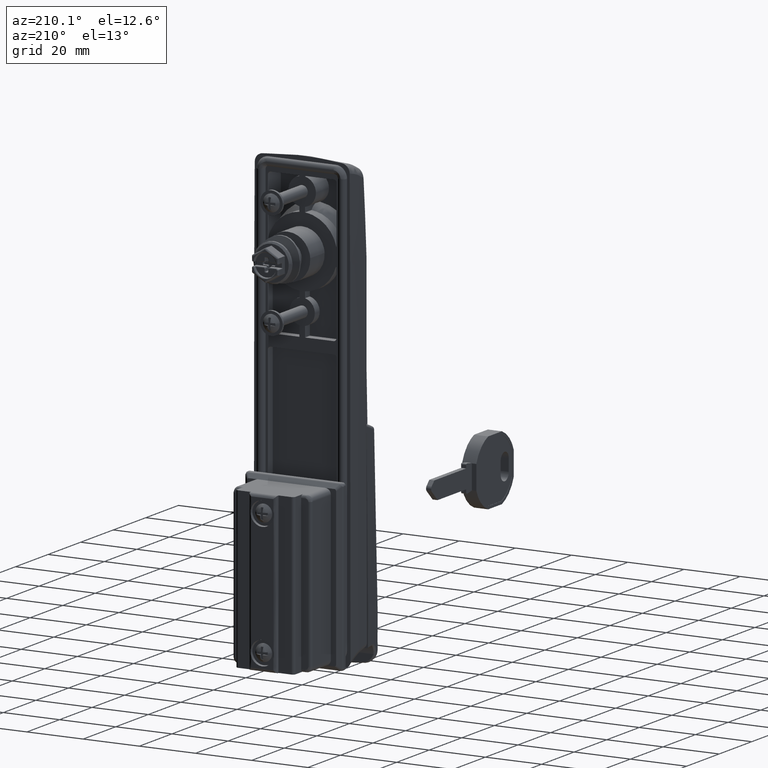
[diagram: clean part render]
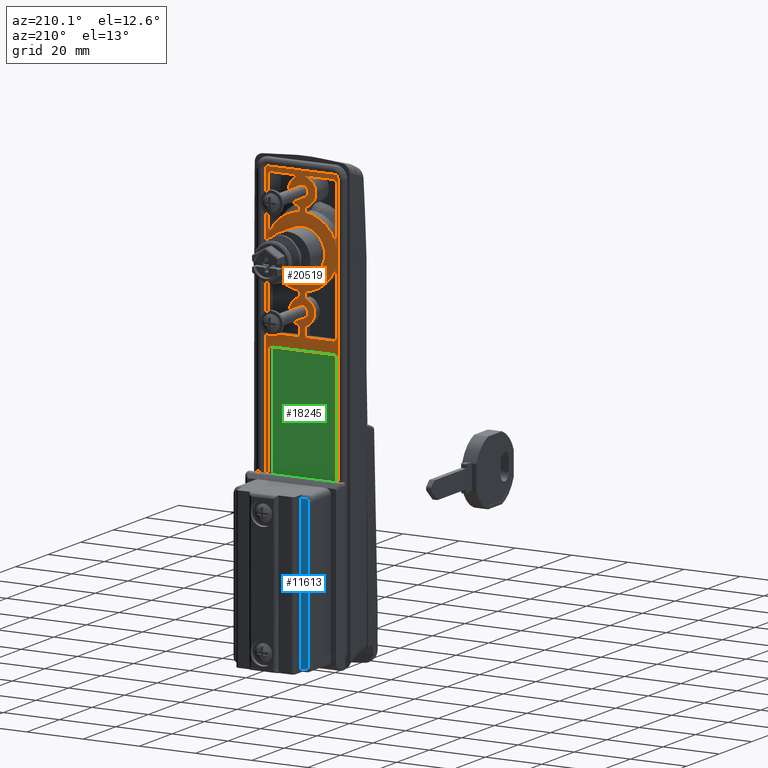
[diagram: same view with three faces highlighted in distinct colors, each labeled with its STEP entity id]
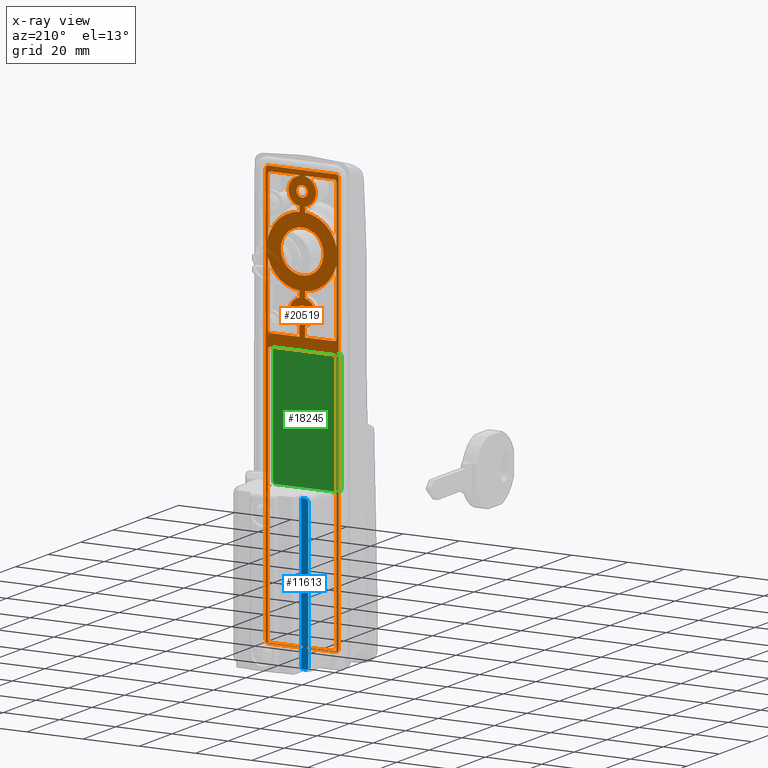
[diagram: x-ray of the same camera — body ghosted, the three highlighted faces saturated]
A machine part, auxiliary view with three faces highlighted in distinct colors.
The next image is the same camera in x-ray (body ghosted, the three faces saturated) — at least one of them is partly hidden behind the body in this view.
Their STEP definitions:

[orange] entity #20519 — the highlighted face is a freeform B-spline surface patch.
#11931=CARTESIAN_POINT('',(-5.551115E-017,5.326909944000573,5.420703870209787));
#11932=VERTEX_POINT('',#11931);
#11938=CARTESIAN_POINT('',(0.0,-7.600000000000000,0.0));
#11939=VERTEX_POINT('',#11938);
#11940=CARTESIAN_POINT('',(-5.551115E-017,5.326909944000573,5.420703870209787));
#11941=CARTESIAN_POINT('',(0.0,3.109241710582899,7.600000000000001));
#11942=CARTESIAN_POINT('',(0.0,0.0,7.600000000000000));
#11943=CARTESIAN_POINT('',(0.0,-7.600000000000000,7.600000000000000));
#11944=CARTESIAN_POINT('',(0.0,-7.600000000000000,0.0));
#11952=(BOUNDED_CURVE()B_SPLINE_CURVE(2,(#11940,#11941,#11942,#11943,#11944),.UNSPECIFIED.,.F.,.U.)B_SPLINE_CURVE_WITH_KNOTS((3,2,3),(0.126316770525920,0.250000000000000,0.500000000000000),.UNSPECIFIED.)CURVE()GEOMETRIC_REPRESENTATION_ITEM()RATIONAL_B_SPLINE_CURVE((0.853569641570771,0.855096083224375,1.0,0.707106781186547,1.0))REPRESENTATION_ITEM(''));
#11953=EDGE_CURVE('',#11932,#11939,#11952,.T.);
#11955=CARTESIAN_POINT('',(-5.551115E-017,-5.326909944000574,-5.420703870209785));
#11956=VERTEX_POINT('',#11955);
#11957=CARTESIAN_POINT('',(0.0,-7.600000000000000,0.0));
#11958=CARTESIAN_POINT('',(0.0,-7.600000000000000,-3.186944876390533));
#11959=CARTESIAN_POINT('',(0.0,-5.326909944000596,-5.420703870209807));
#11967=(BOUNDED_CURVE()B_SPLINE_CURVE(2,(#11957,#11958,#11959),.UNSPECIFIED.,.F.,.U.)B_SPLINE_CURVE_WITH_KNOTS((3,3),(0.500000000000000,0.626316770525920),.UNSPECIFIED.)CURVE()GEOMETRIC_REPRESENTATION_ITEM()RATIONAL_B_SPLINE_CURVE((1.0,0.852010697962173,0.853569641570771))REPRESENTATION_ITEM(''));
#11968=EDGE_CURVE('',#11939,#11956,#11967,.T.);
#12044=CARTESIAN_POINT('',(0.0,7.600000000000000,0.0));
#12045=VERTEX_POINT('',#12044);
#12046=CARTESIAN_POINT('',(-5.551115E-017,-5.326909944000574,-5.420703870209785));
#12047=CARTESIAN_POINT('',(0.0,-3.109241710582900,-7.600000000000001));
#12048=CARTESIAN_POINT('',(0.0,0.0,-7.600000000000000));
#12049=CARTESIAN_POINT('',(0.0,7.600000000000000,-7.600000000000000));
#12050=CARTESIAN_POINT('',(0.0,7.600000000000000,0.0));
#12058=(BOUNDED_CURVE()B_SPLINE_CURVE(2,(#12046,#12047,#12048,#12049,#12050),.UNSPECIFIED.,.F.,.U.)B_SPLINE_CURVE_WITH_KNOTS((3,2,3),(0.626316770525920,0.750000000000000,1.0),.UNSPECIFIED.)CURVE()GEOMETRIC_REPRESENTATION_ITEM()RATIONAL_B_SPLINE_CURVE((0.853569641570771,0.855096083224375,1.0,0.707106781186547,1.0))REPRESENTATION_ITEM(''));
#12059=EDGE_CURVE('',#11956,#12045,#12058,.T.);
#12061=CARTESIAN_POINT('',(0.0,7.600000000000000,0.0));
#12062=CARTESIAN_POINT('',(0.0,7.599999999999999,3.186944876390533));
#12063=CARTESIAN_POINT('',(0.0,5.326909944000595,5.420703870209807));
#12071=(BOUNDED_CURVE()B_SPLINE_CURVE(2,(#12061,#12062,#12063),.UNSPECIFIED.,.F.,.U.)B_SPLINE_CURVE_WITH_KNOTS((3,3),(0.0,0.126316770525920),.UNSPECIFIED.)CURVE()GEOMETRIC_REPRESENTATION_ITEM()RATIONAL_B_SPLINE_CURVE((1.0,0.852010697962173,0.853569641570771))REPRESENTATION_ITEM(''));
#12072=EDGE_CURVE('',#12045,#11932,#12071,.T.);
#12494=CARTESIAN_POINT('',(0.000000084971916,-1.993834667375058,19.156919095066069));
#12495=VERTEX_POINT('',#12494);
#12501=CARTESIAN_POINT('',(0.000000083740410,0.0,17.000000902451600));
#12502=VERTEX_POINT('',#12501);
#12503=CARTESIAN_POINT('',(0.000000084971917,-1.993834667375059,19.156919095066062));
#12504=CARTESIAN_POINT('',(0.000000084927189,-2.000000000000000,19.078581117049016));
#12505=CARTESIAN_POINT('',(0.000000084882323,-2.0,19.000000902451600));
#12506=CARTESIAN_POINT('',(0.000000083740410,-2.000000000000000,17.000000902451593));
#12507=CARTESIAN_POINT('',(0.000000083740410,0.0,17.000000902451600));
#12515=(BOUNDED_CURVE()B_SPLINE_CURVE(2,(#12503,#12504,#12505,#12506,#12507),.UNSPECIFIED.,.F.,.U.)B_SPLINE_CURVE_WITH_KNOTS((3,2,3),(0.736331300533139,0.750000000000000,1.0),.UNSPECIFIED.)CURVE()GEOMETRIC_REPRESENTATION_ITEM()RATIONAL_B_SPLINE_CURVE((0.969723355963899,0.983986122464629,1.0,0.707106781186548,1.0))REPRESENTATION_ITEM(''));
#12516=EDGE_CURVE('',#12495,#12502,#12515,.T.);
#12518=CARTESIAN_POINT('',(0.000000084792730,1.993834667375058,18.843082709837141));
#12519=VERTEX_POINT('',#12518);
#12520=CARTESIAN_POINT('',(0.000000083740410,0.0,17.000000902451600));
#12521=CARTESIAN_POINT('',(0.000000083740410,1.848780982238623,17.000000902451593));
#12522=CARTESIAN_POINT('',(0.000000084792730,1.993834667375059,18.843082709837148));
#12530=(BOUNDED_CURVE()B_SPLINE_CURVE(2,(#12520,#12521,#12522),.UNSPECIFIED.,.F.,.U.)B_SPLINE_CURVE_WITH_KNOTS((3,3),(0.0,0.236331300533139),.UNSPECIFIED.)CURVE()GEOMETRIC_REPRESENTATION_ITEM()RATIONAL_B_SPLINE_CURVE((1.0,0.723120658721918,0.969723355963900))REPRESENTATION_ITEM(''));
#12531=EDGE_CURVE('',#12502,#12519,#12530,.T.);
#12577=CARTESIAN_POINT('',(0.000000086024237,0.0,21.000000902451600));
#12578=VERTEX_POINT('',#12577);
#12579=CARTESIAN_POINT('',(0.000000084792730,1.993834667375058,18.843082709837137));
#12580=CARTESIAN_POINT('',(0.000000084837457,2.000000000000000,18.921420687854187));
#12581=CARTESIAN_POINT('',(0.000000084882323,2.0,19.000000902451600));
#12582=CARTESIAN_POINT('',(0.000000086024237,2.000000000000000,21.000000902451607));
#12583=CARTESIAN_POINT('',(0.000000086024237,0.0,21.000000902451600));
#12591=(BOUNDED_CURVE()B_SPLINE_CURVE(2,(#12579,#12580,#12581,#12582,#12583),.UNSPECIFIED.,.F.,.U.)B_SPLINE_CURVE_WITH_KNOTS((3,2,3),(0.236331300533139,0.250000000000000,0.500000000000000),.UNSPECIFIED.)CURVE()GEOMETRIC_REPRESENTATION_ITEM()RATIONAL_B_SPLINE_CURVE((0.969723355963900,0.983986122464629,1.0,0.707106781186548,1.0))REPRESENTATION_ITEM(''));
#12592=EDGE_CURVE('',#12519,#12578,#12591,.T.);
#12594=CARTESIAN_POINT('',(0.000000086024237,0.0,21.000000902451600));
#12595=CARTESIAN_POINT('',(0.000000086024237,-1.848780982238621,21.000000902451610));
#12596=CARTESIAN_POINT('',(0.000000084971917,-1.993834667375058,19.156919095066069));
#12604=(BOUNDED_CURVE()B_SPLINE_CURVE(2,(#12594,#12595,#12596),.UNSPECIFIED.,.F.,.U.)B_SPLINE_CURVE_WITH_KNOTS((3,3),(0.500000000000000,0.736331300533139),.UNSPECIFIED.)CURVE()GEOMETRIC_REPRESENTATION_ITEM()RATIONAL_B_SPLINE_CURVE((1.0,0.723120658721918,0.969723355963899))REPRESENTATION_ITEM(''));
#12605=EDGE_CURVE('',#12578,#12495,#12604,.T.);
#12676=CARTESIAN_POINT('',(0.000000063275495,-1.993834667375058,-18.843080904933991));
#12677=VERTEX_POINT('',#12676);
#12683=CARTESIAN_POINT('',(0.000000062043987,0.0,-20.999999097548450));
#12684=VERTEX_POINT('',#12683);
#12685=CARTESIAN_POINT('',(0.000000063275494,-1.993834667375059,-18.843080904933991));
#12686=CARTESIAN_POINT('',(0.000000063230767,-2.0,-18.921418882951034));
#12687=CARTESIAN_POINT('',(0.000000063185901,-2.0,-18.999999097548450));
#12688=CARTESIAN_POINT('',(0.000000062043987,-2.000000000000000,-20.999999097548450));
#12689=CARTESIAN_POINT('',(0.000000062043987,0.0,-20.999999097548450));
#12697=(BOUNDED_CURVE()B_SPLINE_CURVE(2,(#12685,#12686,#12687,#12688,#12689),.UNSPECIFIED.,.F.,.U.)B_SPLINE_CURVE_WITH_KNOTS((3,2,3),(0.736331300533139,0.750000000000000,1.0),.UNSPECIFIED.)CURVE()GEOMETRIC_REPRESENTATION_ITEM()RATIONAL_B_SPLINE_CURVE((0.969723355963899,0.983986122464629,1.0,0.707106781186548,1.0))REPRESENTATION_ITEM(''));
#12698=EDGE_CURVE('',#12677,#12684,#12697,.T.);
#12700=CARTESIAN_POINT('',(0.000000063096307,1.993834667375058,-19.156917290162919));
#12701=VERTEX_POINT('',#12700);
#12702=CARTESIAN_POINT('',(0.000000062043987,0.0,-20.999999097548450));
#12703=CARTESIAN_POINT('',(0.000000062043987,1.848780982238621,-20.999999097548454));
#12704=CARTESIAN_POINT('',(0.000000063096307,1.993834667375058,-19.156917290162909));
#12712=(BOUNDED_CURVE()B_SPLINE_CURVE(2,(#12702,#12703,#12704),.UNSPECIFIED.,.F.,.U.)B_SPLINE_CURVE_WITH_KNOTS((3,3),(0.0,0.236331300533139),.UNSPECIFIED.)CURVE()GEOMETRIC_REPRESENTATION_ITEM()RATIONAL_B_SPLINE_CURVE((1.0,0.723120658721918,0.969723355963899))REPRESENTATION_ITEM(''));
#12713=EDGE_CURVE('',#12684,#12701,#12712,.T.);
#12759=CARTESIAN_POINT('',(0.000000064327815,0.0,-16.999999097548450));
#12760=VERTEX_POINT('',#12759);
#12761=CARTESIAN_POINT('',(0.000000063096307,1.993834667375058,-19.156917290162909));
#12762=CARTESIAN_POINT('',(0.000000063141035,2.000000000000000,-19.078579312145862));
#12763=CARTESIAN_POINT('',(0.000000063185901,2.0,-18.999999097548450));
#12764=CARTESIAN_POINT('',(0.000000064327815,2.000000000000000,-16.999999097548454));
#12765=CARTESIAN_POINT('',(0.000000064327815,0.0,-16.999999097548450));
#12773=(BOUNDED_CURVE()B_SPLINE_CURVE(2,(#12761,#12762,#12763,#12764,#12765),.UNSPECIFIED.,.F.,.U.)B_SPLINE_CURVE_WITH_KNOTS((3,2,3),(0.236331300533139,0.250000000000000,0.500000000000000),.UNSPECIFIED.)CURVE()GEOMETRIC_REPRESENTATION_ITEM()RATIONAL_B_SPLINE_CURVE((0.969723355963899,0.983986122464629,1.0,0.707106781186548,1.0))REPRESENTATION_ITEM(''));
#12774=EDGE_CURVE('',#12701,#12760,#12773,.T.);
#12776=CARTESIAN_POINT('',(0.000000064327815,0.0,-16.999999097548450));
#12777=CARTESIAN_POINT('',(0.000000064327815,-1.848780982238621,-16.999999097548457));
#12778=CARTESIAN_POINT('',(0.000000063275494,-1.993834667375058,-18.843080904933988));
#12786=(BOUNDED_CURVE()B_SPLINE_CURVE(2,(#12776,#12777,#12778),.UNSPECIFIED.,.F.,.U.)B_SPLINE_CURVE_WITH_KNOTS((3,3),(0.500000000000000,0.736331300533139),.UNSPECIFIED.)CURVE()GEOMETRIC_REPRESENTATION_ITEM()RATIONAL_B_SPLINE_CURVE((1.0,0.723120658721918,0.969723355963899))REPRESENTATION_ITEM(''));
#12787=EDGE_CURVE('',#12760,#12677,#12786,.T.);
#17071=CARTESIAN_POINT('',(-1.110223E-013,1.000120185797414,24.000003627503851));
#17072=VERTEX_POINT('',#17071);
#17073=CARTESIAN_POINT('',(-1.110223E-013,1.000120185797414,23.800034947185399));
#17074=VERTEX_POINT('',#17073);
#17075=CARTESIAN_POINT('',(-1.110223E-013,1.000120185797414,24.000003627503851));
#17076=CARTESIAN_POINT('',(-1.110223E-013,1.000120185797414,23.800034947185399));
#17077=QUASI_UNIFORM_CURVE('',1,(#17075,#17076),.UNSPECIFIED.,.F.,.U.);
#17078=EDGE_CURVE('',#17072,#17074,#17077,.T.);
#17107=CARTESIAN_POINT('',(-1.110223E-013,11.200120670271421,24.000003877504199));
#17108=VERTEX_POINT('',#17107);
#17109=CARTESIAN_POINT('',(-1.110223E-013,11.200120670271421,24.000003877504199));
#17110=CARTESIAN_POINT('',(-1.110223E-013,1.000120185797414,24.000003627503851));
#17111=QUASI_UNIFORM_CURVE('',1,(#17109,#17110),.UNSPECIFIED.,.F.,.U.);
#17112=EDGE_CURVE('',#17108,#17072,#17111,.T.);
#17144=CARTESIAN_POINT('',(-1.110223E-013,12.200120717768860,23.014896032761349));
#17145=VERTEX_POINT('',#17144);
#17146=CARTESIAN_POINT('',(-1.110223E-013,12.200120717768860,23.014896032761349));
#17147=CARTESIAN_POINT('',(-1.110223E-013,12.184664400456883,23.999318669849789));
#17148=CARTESIAN_POINT('',(-1.110223E-013,11.200120670272190,24.000003878604229));
#17156=(BOUNDED_CURVE()B_SPLINE_CURVE(2,(#17146,#17147,#17148),.UNSPECIFIED.,.F.,.U.)CURVE()GEOMETRIC_REPRESENTATION_ITEM()QUASI_UNIFORM_CURVE()RATIONAL_B_SPLINE_CURVE((1.0,0.712879666211485,1.0))REPRESENTATION_ITEM(''));
#17157=EDGE_CURVE('',#17145,#17108,#17156,.T.);
#17188=CARTESIAN_POINT('',(0.000000087737037,-1.000120185797414,24.000003627503851));
#17189=VERTEX_POINT('',#17188);
#17190=CARTESIAN_POINT('',(-1.110223E-013,-11.200120670272099,24.000003878604002));
#17191=VERTEX_POINT('',#17190);
#17192=CARTESIAN_POINT('',(0.000000087737037,-1.000120185797414,24.000003627503851));
#17193=CARTESIAN_POINT('',(-1.110223E-013,-11.200120670272099,24.000003878604002));
#17194=QUASI_UNIFORM_CURVE('',1,(#17192,#17193),.UNSPECIFIED.,.F.,.U.);
#17195=EDGE_CURVE('',#17189,#17191,#17194,.T.);
#17224=CARTESIAN_POINT('',(-1.110223E-013,-1.000123354566898,23.800034947186351));
#17225=VERTEX_POINT('',#17224);
#17226=CARTESIAN_POINT('',(-1.110223E-013,-1.000123354566898,23.800034947186351));
#17227=CARTESIAN_POINT('',(0.000000087737037,-1.000120185797414,24.000003627503851));
#17228=QUASI_UNIFORM_CURVE('',1,(#17226,#17227),.UNSPECIFIED.,.F.,.U.);
#17229=EDGE_CURVE('',#17225,#17189,#17228,.T.);
#17261=CARTESIAN_POINT('',(-1.110223E-013,-12.200120717768860,23.014896032757449));
#17262=VERTEX_POINT('',#17261);
#17263=CARTESIAN_POINT('',(-1.110223E-013,-11.200120670272099,24.000003878604030));
#17264=CARTESIAN_POINT('',(-1.110223E-013,-12.184664400460424,23.999318669849590));
#17265=CARTESIAN_POINT('',(-1.110223E-013,-12.200120717768870,23.014896032757449));
#17273=(BOUNDED_CURVE()B_SPLINE_CURVE(2,(#17263,#17264,#17265),.UNSPECIFIED.,.F.,.U.)CURVE()GEOMETRIC_REPRESENTATION_ITEM()QUASI_UNIFORM_CURVE()RATIONAL_B_SPLINE_CURVE((1.0,0.712879666210193,1.0))REPRESENTATION_ITEM(''));
#17274=EDGE_CURVE('',#17191,#17262,#17273,.T.);
#17397=CARTESIAN_POINT('',(0.0,-12.200120958050441,-25.999998497368502));
#17398=VERTEX_POINT('',#17397);
#17399=CARTESIAN_POINT('',(0.000000072035722,-12.200120717768860,-3.499997428675895));
#17400=VERTEX_POINT('',#17399);
#17401=CARTESIAN_POINT('',(0.0,-12.200120958050441,-25.999998497368502));
#17402=CARTESIAN_POINT('',(0.000000072035722,-12.200120717768860,-3.499997428675895));
#17403=QUASI_UNIFORM_CURVE('',1,(#17401,#17402),.UNSPECIFIED.,.F.,.U.);
#17404=EDGE_CURVE('',#17398,#17400,#17403,.T.);
#17425=CARTESIAN_POINT('',(0.0,-12.000212616159621,-3.499997428675895));
#17426=VERTEX_POINT('',#17425);
#17427=CARTESIAN_POINT('',(0.000000072035722,-12.200120717768860,-3.499997428675895));
#17428=CARTESIAN_POINT('',(0.0,-12.000212616159621,-3.499997428675895));
#17429=QUASI_UNIFORM_CURVE('',1,(#17427,#17428),.UNSPECIFIED.,.F.,.U.);
#17430=EDGE_CURVE('',#17400,#17426,#17429,.T.);
#17456=CARTESIAN_POINT('',(0.0,-1.000120196623366,-12.460003505695200));
#17457=VERTEX_POINT('',#17456);
#17458=CARTESIAN_POINT('',(0.0,-12.000212616159621,-3.499997428675895));
#17459=CARTESIAN_POINT('',(0.0,-9.587915476922591,-11.770793113107334));
#17460=CARTESIAN_POINT('',(0.0,-1.000120196623366,-12.460003505695189));
#17468=(BOUNDED_CURVE()B_SPLINE_CURVE(2,(#17458,#17459,#17460),.UNSPECIFIED.,.F.,.U.)CURVE()GEOMETRIC_REPRESENTATION_ITEM()QUASI_UNIFORM_CURVE()RATIONAL_B_SPLINE_CURVE((1.0,0.823376659458550,1.0))REPRESENTATION_ITEM(''));
#17469=EDGE_CURVE('',#17426,#17457,#17468,.T.);
#17486=CARTESIAN_POINT('',(0.0,-1.000120185797300,-14.612360766254200));
#17487=VERTEX_POINT('',#17486);
#17488=CARTESIAN_POINT('',(0.0,-1.000120196623366,-12.460003505695200));
#17489=CARTESIAN_POINT('',(0.0,-1.000120185797300,-14.612360766254200));
#17490=QUASI_UNIFORM_CURVE('',1,(#17488,#17489),.UNSPECIFIED.,.F.,.U.);
#17491=EDGE_CURVE('',#17457,#17487,#17490,.T.);
#17521=CARTESIAN_POINT('',(0.0,-1.000120185797408,-23.387480229701598));
#17522=VERTEX_POINT('',#17521);
#17523=CARTESIAN_POINT('',(0.0,-1.000120185797300,-14.612360766254200));
#17524=CARTESIAN_POINT('',(0.0,-1.585098028271931,-14.745000428749581));
#17525=CARTESIAN_POINT('',(0.0,-2.523685752809362,-15.169848363969541));
#17526=CARTESIAN_POINT('',(0.0,-3.446785887762418,-16.048566690599650));
#17527=CARTESIAN_POINT('',(0.0,-3.957124846726660,-16.812391834861341));
#17528=CARTESIAN_POINT('',(0.0,-4.358561295001432,-17.708619404686878));
#17529=CARTESIAN_POINT('',(0.0,-4.534819109924787,-18.683447540593750));
#17530=CARTESIAN_POINT('',(0.0,-4.472589330498501,-19.663497108372582));
#17531=CARTESIAN_POINT('',(0.0,-4.269260710867047,-20.526799477293409));
#17532=CARTESIAN_POINT('',(0.0,-3.847431894676324,-21.418372715446921));
#17533=CARTESIAN_POINT('',(0.0,-3.084610736637999,-22.354529651479460));
#17534=CARTESIAN_POINT('',(0.0,-2.117667814258463,-23.035081034298770));
#17535=CARTESIAN_POINT('',(0.0,-1.338644211141292,-23.310373623834970));
#17536=CARTESIAN_POINT('',(0.0,-1.000120185797408,-23.387480229701598));
#17537=B_SPLINE_CURVE_WITH_KNOTS('',3,(#17523,#17524,#17525,#17526,#17527,#17528,#17529,#17530,#17531,#17532,#17533,#17534,#17535,#17536),.UNSPECIFIED.,.F.,.U.,(4,1,1,1,1,1,1,1,1,1,1,4),(0.000000285138805,1.799206702045868,3.030243605382664,3.787832187280108,4.545373885321881,5.965821425480653,6.723287031334457,7.480896313976809,8.617245572034557,9.658914659867804,11.079338285529049,12.120964346674461),.UNSPECIFIED.);
#17538=EDGE_CURVE('',#17487,#17522,#17537,.T.);
#17555=CARTESIAN_POINT('',(0.0,-1.000120185797300,-26.999998294865900));
#17556=VERTEX_POINT('',#17555);
#17557=CARTESIAN_POINT('',(0.0,-1.000120185797408,-23.387480229701598));
#17558=CARTESIAN_POINT('',(0.0,-1.000120185797300,-26.999998294865900));
#17559=QUASI_UNIFORM_CURVE('',1,(#17557,#17558),.UNSPECIFIED.,.F.,.U.);
#17560=EDGE_CURVE('',#17522,#17556,#17559,.T.);
#17577=CARTESIAN_POINT('',(0.0,-11.200120670271300,-26.999998544866049));
#17578=VERTEX_POINT('',#17577);
#17579=CARTESIAN_POINT('',(0.0,-1.000120185797300,-26.999998294865900));
#17580=CARTESIAN_POINT('',(0.0,-11.200120670271300,-26.999998544866049));
#17581=QUASI_UNIFORM_CURVE('',1,(#17579,#17580),.UNSPECIFIED.,.F.,.U.);
#17582=EDGE_CURVE('',#17556,#17578,#17581,.T.);
#17608=CARTESIAN_POINT('',(0.0,-12.200120958050420,-25.999998497368502));
#17609=CARTESIAN_POINT('',(0.0,-12.200120377959484,-26.999998205056546));
#17610=CARTESIAN_POINT('',(0.0,-11.200120670271440,-26.999998785147540));
#17618=(BOUNDED_CURVE()B_SPLINE_CURVE(2,(#17608,#17609,#17610),.UNSPECIFIED.,.F.,.U.)CURVE()GEOMETRIC_REPRESENTATION_ITEM()QUASI_UNIFORM_CURVE()RATIONAL_B_SPLINE_CURVE((1.0,0.707107191372799,1.0))REPRESENTATION_ITEM(''));
#17619=EDGE_CURVE('',#17398,#17578,#17618,.T.);
#17724=CARTESIAN_POINT('',(0.000000059189193,12.199880441169061,-25.999998497368850));
#17725=VERTEX_POINT('',#17724);
#17726=CARTESIAN_POINT('',(0.0,12.199880441169061,-3.499997678676040));
#17727=VERTEX_POINT('',#17726);
#17728=CARTESIAN_POINT('',(0.000000059189193,12.199880441169061,-25.999998497368850));
#17729=CARTESIAN_POINT('',(0.0,12.199880441169061,-3.499997678676040));
#17730=QUASI_UNIFORM_CURVE('',1,(#17728,#17729),.UNSPECIFIED.,.F.,.U.);
#17731=EDGE_CURVE('',#17725,#17727,#17730,.T.);
#17761=CARTESIAN_POINT('',(0.0,11.199880393671499,-26.999998544866049));
#17762=VERTEX_POINT('',#17761);
#17763=CARTESIAN_POINT('',(0.0,11.199880393671499,-26.999998544866049));
#17764=CARTESIAN_POINT('',(0.0,12.199880101359193,-26.999998205056553));
#17765=CARTESIAN_POINT('',(0.0,12.199880681450621,-25.999998497368988));
#17773=(BOUNDED_CURVE()B_SPLINE_CURVE(2,(#17763,#17764,#17765),.UNSPECIFIED.,.F.,.U.)CURVE()GEOMETRIC_REPRESENTATION_ITEM()QUASI_UNIFORM_CURVE()RATIONAL_B_SPLINE_CURVE((1.0,0.707107191372979,1.0))REPRESENTATION_ITEM(''));
#17774=EDGE_CURVE('',#17762,#17725,#17773,.T.);
#17791=CARTESIAN_POINT('',(0.0,0.999879909197489,-26.999998544866049));
#17792=VERTEX_POINT('',#17791);
#17793=CARTESIAN_POINT('',(0.0,0.999879909197489,-26.999998544866049));
#17794=CARTESIAN_POINT('',(0.0,11.199880393671499,-26.999998544866049));
#17795=QUASI_UNIFORM_CURVE('',1,(#17793,#17794),.UNSPECIFIED.,.F.,.U.);
#17796=EDGE_CURVE('',#17792,#17762,#17795,.T.);
#17813=CARTESIAN_POINT('',(0.0,0.999881389108586,-23.387480229702049));
#17814=VERTEX_POINT('',#17813);
#17815=CARTESIAN_POINT('',(0.0,0.999881389108586,-23.387480229702049));
#17816=CARTESIAN_POINT('',(0.0,0.999879909197489,-26.999998544866049));
#17817=QUASI_UNIFORM_CURVE('',1,(#17815,#17816),.UNSPECIFIED.,.F.,.U.);
#17818=EDGE_CURVE('',#17814,#17792,#17817,.T.);
#17848=CARTESIAN_POINT('',(0.0,0.999879909197489,-14.612360766444739));
#17849=VERTEX_POINT('',#17848);
#17850=CARTESIAN_POINT('',(0.0,0.999881389108586,-23.387480229702049));
#17851=CARTESIAN_POINT('',(0.0,1.584886189049107,-23.254882637277611));
#17852=CARTESIAN_POINT('',(0.0,2.523417112001130,-22.829968169634689));
#17853=CARTESIAN_POINT('',(0.0,3.492694415123265,-21.907335466341070));
#17854=CARTESIAN_POINT('',(0.0,4.124642578232119,-20.917430538352530));
#17855=CARTESIAN_POINT('',(0.0,4.451544857420538,-19.916559416342931));
#17856=CARTESIAN_POINT('',(0.0,4.528342861071998,-18.873058161504400));
#17857=CARTESIAN_POINT('',(0.0,4.396612515365672,-17.833981026622109));
#17858=CARTESIAN_POINT('',(0.0,3.936631635864858,-16.677666719477099));
#17859=CARTESIAN_POINT('',(0.0,3.169207488544404,-15.736350046710109));
#17860=CARTESIAN_POINT('',(0.0,2.173115371080729,-15.003565656959591));
#17861=CARTESIAN_POINT('',(0.0,1.461587137692445,-14.717301609117110));
#17862=CARTESIAN_POINT('',(0.0,0.999879909197489,-14.612360766444739));
#17863=B_SPLINE_CURVE_WITH_KNOTS('',3,(#17850,#17851,#17852,#17853,#17854,#17855,#17856,#17857,#17858,#17859,#17860,#17861,#17862),.UNSPECIFIED.,.F.,.U.,(4,1,1,1,1,1,1,1,1,1,4),(0.000000285134163,1.799206511172180,3.030243283950224,3.977202129001061,5.302972769491920,6.155144369792367,7.102059814908463,8.427834534427323,9.848292423474799,10.700599900097631,12.120963060960939),.UNSPECIFIED.);
#17864=EDGE_CURVE('',#17814,#17849,#17863,.T.);
#17881=CARTESIAN_POINT('',(0.0,0.999881600867987,-12.460003370724660));
#17882=VERTEX_POINT('',#17881);
#17883=CARTESIAN_POINT('',(0.0,0.999881600867987,-12.460003370724660));
#17884=CARTESIAN_POINT('',(0.0,0.999879909197489,-14.612360766444739));
#17885=QUASI_UNIFORM_CURVE('',1,(#17883,#17884),.UNSPECIFIED.,.F.,.U.);
#17886=EDGE_CURVE('',#17882,#17849,#17885,.T.);
#17912=CARTESIAN_POINT('',(0.0,11.999972339535841,-3.499997428676315));
#17913=VERTEX_POINT('',#17912);
#17914=CARTESIAN_POINT('',(0.0,0.999881600867983,-12.460003370724669));
#17915=CARTESIAN_POINT('',(0.0,9.587675548619140,-11.770791919311620));
#17916=CARTESIAN_POINT('',(0.0,11.999972339535850,-3.499997428676320));
#17924=(BOUNDED_CURVE()B_SPLINE_CURVE(2,(#17914,#17915,#17916),.UNSPECIFIED.,.F.,.U.)CURVE()GEOMETRIC_REPRESENTATION_ITEM()QUASI_UNIFORM_CURVE()RATIONAL_B_SPLINE_CURVE((1.0,0.823376697725791,1.0))REPRESENTATION_ITEM(''));
#17925=EDGE_CURVE('',#17882,#17913,#17924,.T.);
#17942=CARTESIAN_POINT('',(0.0,12.199880441169061,-3.499997678676040));
#17943=CARTESIAN_POINT('',(0.0,11.999972339535841,-3.499997428676315));
#17944=QUASI_UNIFORM_CURVE('',1,(#17942,#17943),.UNSPECIFIED.,.F.,.U.);
#17945=EDGE_CURVE('',#17727,#17913,#17944,.T.);
#18063=CARTESIAN_POINT('',(-2.220446E-013,12.199880441169061,-124.750005925306990));
#18064=VERTEX_POINT('',#18063);
#18065=CARTESIAN_POINT('',(-2.220446E-013,-12.200120717768860,-124.750005925306990));
#18066=VERTEX_POINT('',#18065);
#18067=CARTESIAN_POINT('',(-2.220446E-013,12.199880441169061,-124.750005925306990));
#18068=CARTESIAN_POINT('',(-2.220446E-013,-12.200120717768860,-124.750005925306990));
#18069=QUASI_UNIFORM_CURVE('',1,(#18067,#18068),.UNSPECIFIED.,.F.,.U.);
#18070=EDGE_CURVE('',#18064,#18066,#18069,.T.);
#18099=CARTESIAN_POINT('',(-2.220446E-013,12.199880441169061,-75.250003574183197));
#18100=VERTEX_POINT('',#18099);
#18101=CARTESIAN_POINT('',(-2.220446E-013,12.199880441169061,-75.250003574183197));
#18102=CARTESIAN_POINT('',(-2.220446E-013,12.199880441169061,-124.750005925306990));
#18103=QUASI_UNIFORM_CURVE('',1,(#18101,#18102),.UNSPECIFIED.,.F.,.U.);
#18104=EDGE_CURVE('',#18100,#18064,#18103,.T.);
#18127=CARTESIAN_POINT('',(-2.220446E-013,-12.200120717768860,-75.250003574183197));
#18128=VERTEX_POINT('',#18127);
#18129=CARTESIAN_POINT('',(-2.220446E-013,-12.200120717768860,-124.750005925306990));
#18130=CARTESIAN_POINT('',(-2.220446E-013,-12.200120717768860,-75.250003574183197));
#18131=QUASI_UNIFORM_CURVE('',1,(#18129,#18130),.UNSPECIFIED.,.F.,.U.);
#18132=EDGE_CURVE('',#18066,#18128,#18131,.T.);
#18260=CARTESIAN_POINT('',(0.000000055620619,12.199880441169061,-32.249998746730249));
#18261=VERTEX_POINT('',#18260);
#18262=CARTESIAN_POINT('',(0.000000144937840,11.199880441169061,-31.249998746730249));
#18263=VERTEX_POINT('',#18262);
#18264=CARTESIAN_POINT('',(0.000000055620619,12.199880441169061,-32.249998746730249));
#18265=CARTESIAN_POINT('',(0.000000144937840,12.199880441169059,-31.249998746730249));
#18266=CARTESIAN_POINT('',(0.000000144937840,11.199880441169061,-31.249998746730249));
#18274=(BOUNDED_CURVE()B_SPLINE_CURVE(2,(#18264,#18265,#18266),.UNSPECIFIED.,.F.,.U.)CURVE()GEOMETRIC_REPRESENTATION_ITEM()QUASI_UNIFORM_CURVE()RATIONAL_B_SPLINE_CURVE((1.0,0.707106781186548,1.0))REPRESENTATION_ITEM(''));
#18275=EDGE_CURVE('',#18261,#18263,#18274,.T.);
#18296=CARTESIAN_POINT('',(0.000000144937840,12.199880441169061,-74.250003574183197));
#18297=VERTEX_POINT('',#18296);
#18298=CARTESIAN_POINT('',(0.000000144937840,12.199880441169061,-74.250003574183197));
#18299=CARTESIAN_POINT('',(0.000000055620619,12.199880441169061,-32.249998746730249));
#18300=QUASI_UNIFORM_CURVE('',1,(#18298,#18299),.UNSPECIFIED.,.F.,.U.);
#18301=EDGE_CURVE('',#18297,#18261,#18300,.T.);
#18327=CARTESIAN_POINT('',(0.000000144937840,11.199880441169061,-75.250003574183197));
#18328=VERTEX_POINT('',#18327);
#18329=CARTESIAN_POINT('',(0.000000144937840,11.199880441169061,-75.250003574183197));
#18330=CARTESIAN_POINT('',(0.000000144937840,12.199880441169059,-75.250003574183197));
#18331=CARTESIAN_POINT('',(0.000000144937840,12.199880441169061,-74.250003574183197));
#18339=(BOUNDED_CURVE()B_SPLINE_CURVE(2,(#18329,#18330,#18331),.UNSPECIFIED.,.F.,.U.)CURVE()GEOMETRIC_REPRESENTATION_ITEM()QUASI_UNIFORM_CURVE()RATIONAL_B_SPLINE_CURVE((1.0,0.707106781186548,1.0))REPRESENTATION_ITEM(''));
#18340=EDGE_CURVE('',#18328,#18297,#18339,.T.);
#18357=CARTESIAN_POINT('',(-1.698908E-013,-11.200120717768860,-75.250003574183197));
#18358=VERTEX_POINT('',#18357);
#18364=CARTESIAN_POINT('',(-2.220446E-013,-12.200120717768860,-75.250003574183197));
#18365=CARTESIAN_POINT('',(-1.698908E-013,-11.200120717768860,-75.250003574183197));
#18366=QUASI_UNIFORM_CURVE('',1,(#18364,#18365),.UNSPECIFIED.,.F.,.U.);
#18367=EDGE_CURVE('',#18128,#18358,#18366,.T.);
#18376=CARTESIAN_POINT('',(0.000000144937840,11.199880441169061,-75.250003574183197));
#18377=CARTESIAN_POINT('',(-2.220446E-013,12.199880441169061,-75.250003574183197));
#18378=QUASI_UNIFORM_CURVE('',1,(#18376,#18377),.UNSPECIFIED.,.F.,.U.);
#18379=EDGE_CURVE('',#18328,#18100,#18378,.T.);
#18400=CARTESIAN_POINT('',(0.000000144937840,-12.200120717768860,-74.250003574183197));
#18401=VERTEX_POINT('',#18400);
#18402=CARTESIAN_POINT('',(0.000000144937840,-12.200120717768860,-74.250003574183197));
#18403=CARTESIAN_POINT('',(0.000000144937840,-12.200120717768861,-75.250003574183197));
#18404=CARTESIAN_POINT('',(0.000000144937840,-11.200120717768860,-75.250003574183197));
#18412=(BOUNDED_CURVE()B_SPLINE_CURVE(2,(#18402,#18403,#18404),.UNSPECIFIED.,.F.,.U.)CURVE()GEOMETRIC_REPRESENTATION_ITEM()QUASI_UNIFORM_CURVE()RATIONAL_B_SPLINE_CURVE((1.0,0.707106781186548,1.0))REPRESENTATION_ITEM(''));
#18413=EDGE_CURVE('',#18401,#18358,#18412,.T.);
#18430=CARTESIAN_POINT('',(0.000000144937840,-12.200120717768860,-32.249998746730249));
#18431=VERTEX_POINT('',#18430);
#18432=CARTESIAN_POINT('',(0.000000144937840,-12.200120717768860,-32.249998746730249));
#18433=CARTESIAN_POINT('',(0.000000144937840,-12.200120717768860,-74.250003574183197));
#18434=QUASI_UNIFORM_CURVE('',1,(#18432,#18433),.UNSPECIFIED.,.F.,.U.);
#18435=EDGE_CURVE('',#18431,#18401,#18434,.T.);
#18461=CARTESIAN_POINT('',(0.000000144937840,-11.200120717768860,-31.249998746730249));
#18462=VERTEX_POINT('',#18461);
#18463=CARTESIAN_POINT('',(0.000000144937840,-11.200120717768860,-31.249998746730249));
#18464=CARTESIAN_POINT('',(0.000000144937840,-12.200120717768861,-31.249998746730249));
#18465=CARTESIAN_POINT('',(0.000000144937840,-12.200120717768860,-32.249998746730249));
#18473=(BOUNDED_CURVE()B_SPLINE_CURVE(2,(#18463,#18464,#18465),.UNSPECIFIED.,.F.,.U.)CURVE()GEOMETRIC_REPRESENTATION_ITEM()QUASI_UNIFORM_CURVE()RATIONAL_B_SPLINE_CURVE((1.0,0.707106781186548,1.0))REPRESENTATION_ITEM(''));
#18474=EDGE_CURVE('',#18462,#18431,#18473,.T.);
#18491=CARTESIAN_POINT('',(0.000000144937840,11.199880441169061,-31.249998746730249));
#18492=CARTESIAN_POINT('',(0.000000144937840,-11.200120717768860,-31.249998746730249));
#18493=QUASI_UNIFORM_CURVE('',1,(#18491,#18492),.UNSPECIFIED.,.F.,.U.);
#18494=EDGE_CURVE('',#18263,#18462,#18493,.T.);
#19612=CARTESIAN_POINT('',(0.000000072469031,-12.021239786847699,25.727551349195650));
#19613=VERTEX_POINT('',#19612);
#19620=CARTESIAN_POINT('',(0.000000088158406,-13.000120755766821,24.738048293428751));
#19621=VERTEX_POINT('',#19620);
#19627=CARTESIAN_POINT('',(0.000000072469031,-12.021239786847699,25.727551349195679));
#19628=CARTESIAN_POINT('',(0.000000072469031,-12.989335533589777,25.706316829865770));
#19629=CARTESIAN_POINT('',(0.000000072469031,-13.000120755766840,24.738048293428751));
#19637=(BOUNDED_CURVE()B_SPLINE_CURVE(2,(#19627,#19628,#19629),.UNSPECIFIED.,.F.,.U.)CURVE()GEOMETRIC_REPRESENTATION_ITEM()QUASI_UNIFORM_CURVE()RATIONAL_B_SPLINE_CURVE((1.0,0.718701252852474,1.0))REPRESENTATION_ITEM(''));
#19638=EDGE_CURVE('',#19613,#19621,#19637,.T.);
#19892=CARTESIAN_POINT('',(0.000000072469031,12.021239787031019,25.727551349192051));
#19893=VERTEX_POINT('',#19892);
#19901=CARTESIAN_POINT('',(0.000000072469031,12.021239787031019,25.727551349192051));
#19902=CARTESIAN_POINT('',(0.000000072469031,-12.021239786847699,25.727551349195650));
#19903=QUASI_UNIFORM_CURVE('',1,(#19901,#19902),.UNSPECIFIED.,.F.,.U.);
#19904=EDGE_CURVE('',#19893,#19613,#19903,.T.);
#19923=CARTESIAN_POINT('',(0.000000072469031,13.000120755766799,24.738048293431049));
#19924=VERTEX_POINT('',#19923);
#19932=CARTESIAN_POINT('',(0.000000072469031,13.000120755766821,24.738048293431049));
#19933=CARTESIAN_POINT('',(0.000000072469031,12.989335533589918,25.706316829688710));
#19934=CARTESIAN_POINT('',(0.000000072469031,12.021239787031019,25.727551349192058));
#19942=(BOUNDED_CURVE()B_SPLINE_CURVE(2,(#19932,#19933,#19934),.UNSPECIFIED.,.F.,.U.)CURVE()GEOMETRIC_REPRESENTATION_ITEM()QUASI_UNIFORM_CURVE()RATIONAL_B_SPLINE_CURVE((1.0,0.718701252916825,1.0))REPRESENTATION_ITEM(''));
#19943=EDGE_CURVE('',#19924,#19893,#19942,.T.);
#19953=CARTESIAN_POINT('',(0.000000072469031,13.000120755770761,-124.071254975315400));
#19954=VERTEX_POINT('',#19953);
#19962=CARTESIAN_POINT('',(0.000000072469031,13.000120755770761,-124.071254975315400));
#19963=CARTESIAN_POINT('',(0.000000072469031,13.000120755766799,24.738048293431049));
#19964=QUASI_UNIFORM_CURVE('',1,(#19962,#19963),.UNSPECIFIED.,.F.,.U.);
#19965=EDGE_CURVE('',#19954,#19924,#19964,.T.);
#19984=CARTESIAN_POINT('',(0.000000072469031,11.977342595051820,-125.060758031435200));
#19985=VERTEX_POINT('',#19984);
#19993=CARTESIAN_POINT('',(0.000000072469031,11.977342595051820,-125.060758031435200));
#19994=CARTESIAN_POINT('',(0.000000072469031,12.125759614756930,-125.064261648854900));
#19995=CARTESIAN_POINT('',(0.000000072469031,12.374027416873870,-125.013339784607100));
#19996=CARTESIAN_POINT('',(0.000000072469031,12.710829066671510,-124.797147263003000));
#19997=CARTESIAN_POINT('',(0.000000072469031,12.939373130971990,-124.482816663909500));
#19998=CARTESIAN_POINT('',(0.000000072469031,12.998775076281150,-124.203172200670000));
#19999=CARTESIAN_POINT('',(0.000000072469031,13.000120755770761,-124.071254975315400));
#20000=B_SPLINE_CURVE_WITH_KNOTS('',3,(#19993,#19994,#19995,#19996,#19997,#19998,#19999),.UNSPECIFIED.,.F.,.U.,(4,1,1,1,4),(0.000000316306932,0.445273231992924,0.742116627261822,1.187370162005494,1.583160110571361),.UNSPECIFIED.);
#20001=EDGE_CURVE('',#19985,#19954,#20000,.T.);
#20011=CARTESIAN_POINT('',(0.000000072469031,-11.977342595063300,-125.060758031431600));
#20012=VERTEX_POINT('',#20011);
#20020=CARTESIAN_POINT('',(0.000000072469031,-11.977342595063300,-125.060758031431600));
#20021=CARTESIAN_POINT('',(0.000000072469031,11.977342595051820,-125.060758031435200));
#20022=QUASI_UNIFORM_CURVE('',1,(#20020,#20021),.UNSPECIFIED.,.F.,.U.);
#20023=EDGE_CURVE('',#20012,#19985,#20022,.T.);
#20042=CARTESIAN_POINT('',(0.000000072469031,-13.000120755766719,-124.071254975675000));
#20043=VERTEX_POINT('',#20042);
#20051=CARTESIAN_POINT('',(0.000000072469031,-13.000120755766719,-124.071254975675000));
#20052=CARTESIAN_POINT('',(0.000000072469031,-12.998789074998690,-124.203186923212400));
#20053=CARTESIAN_POINT('',(0.000000072469031,-12.946266405710940,-124.449828165102600));
#20054=CARTESIAN_POINT('',(0.000000072469031,-12.726419281299631,-124.786144339979400));
#20055=CARTESIAN_POINT('',(0.000000072469031,-12.390680763201980,-125.013654732694700));
#20056=CARTESIAN_POINT('',(0.000000072469031,-12.109233340339790,-125.063773966761000));
#20057=CARTESIAN_POINT('',(0.000000072469031,-11.977342595063300,-125.060758031431600));
#20058=B_SPLINE_CURVE_WITH_KNOTS('',3,(#20051,#20052,#20053,#20054,#20055,#20056,#20057),.UNSPECIFIED.,.F.,.U.,(4,1,1,1,4),(0.000000316304318,0.395790264777979,0.742116627085523,1.187370161725075,1.583160110198793),.UNSPECIFIED.);
#20059=EDGE_CURVE('',#20043,#20012,#20058,.T.);
#20072=CARTESIAN_POINT('',(0.000000088158406,-13.000120755766821,24.738048293428751));
#20073=CARTESIAN_POINT('',(0.000000072469031,-13.000120755766719,-124.071254975675000));
#20074=QUASI_UNIFORM_CURVE('',1,(#20072,#20073),.UNSPECIFIED.,.F.,.U.);
#20075=EDGE_CURVE('',#19621,#20043,#20074,.T.);
#20348=CARTESIAN_POINT('',(0.000000093023768,-14.298832768874609,33.259427110501157));
#20349=CARTESIAN_POINT('',(-1.670606E-009,-14.298832768874609,-132.592637837198310));
#20350=CARTESIAN_POINT('',(0.000000093023769,14.298833466259371,33.259427110501157));
#20351=CARTESIAN_POINT('',(-1.670605E-009,14.298833466259371,-132.592637837198310));
#20352=B_SPLINE_SURFACE_WITH_KNOTS('',1,1,((#20348,#20350),(#20349,#20351)),.UNSPECIFIED.,.F.,.F.,.U.,(2,2),(2,2),(0.0,165.852064947699490),(0.0,28.597666235133978),.UNSPECIFIED.);
#20353=ORIENTED_EDGE('',*,*,#19638,.T.);
#20354=ORIENTED_EDGE('',*,*,#20075,.T.);
#20355=ORIENTED_EDGE('',*,*,#20059,.T.);
#20356=ORIENTED_EDGE('',*,*,#20023,.T.);
#20357=ORIENTED_EDGE('',*,*,#20001,.T.);
#20358=ORIENTED_EDGE('',*,*,#19965,.T.);
#20359=ORIENTED_EDGE('',*,*,#19943,.T.);
#20360=ORIENTED_EDGE('',*,*,#19904,.T.);
#20361=EDGE_LOOP('',(#20353,#20354,#20355,#20356,#20357,#20358,#20359,#20360));
#20362=FACE_OUTER_BOUND('',#20361,.T.);
#20363=CARTESIAN_POINT('',(-1.110223E-013,-12.200120717768860,2.722533854957875));
#20364=VERTEX_POINT('',#20363);
#20365=CARTESIAN_POINT('',(-1.110223E-013,-12.200120717768860,23.014896032757449));
#20366=CARTESIAN_POINT('',(-1.110223E-013,-12.200120717768860,2.722533854957875));
#20367=QUASI_UNIFORM_CURVE('',1,(#20365,#20366),.UNSPECIFIED.,.F.,.U.);
#20368=EDGE_CURVE('',#17262,#20364,#20367,.T.);
#20369=ORIENTED_EDGE('',*,*,#20368,.F.);
#20370=ORIENTED_EDGE('',*,*,#17274,.F.);
#20371=ORIENTED_EDGE('',*,*,#17195,.F.);
#20372=ORIENTED_EDGE('',*,*,#17229,.F.);
#20373=CARTESIAN_POINT('',(-1.110223E-013,-1.000123354566880,14.199972332842060));
#20374=VERTEX_POINT('',#20373);
#20375=CARTESIAN_POINT('',(-1.110223E-013,-1.000123354566898,23.800034947186351));
#20376=CARTESIAN_POINT('',(-1.110223E-013,-1.546401578199161,23.686594197128411));
#20377=CARTESIAN_POINT('',(-1.110223E-013,-2.335840206506939,23.374254292650640));
#20378=CARTESIAN_POINT('',(-1.110223E-013,-3.267511708752612,22.691798166922862));
#20379=CARTESIAN_POINT('',(-1.110223E-013,-3.965489597017386,21.953686045287679));
#20380=CARTESIAN_POINT('',(-1.110223E-013,-4.483864398309468,21.075818069568889));
#20381=CARTESIAN_POINT('',(-1.110223E-013,-4.791979513362382,20.145627199634770));
#20382=CARTESIAN_POINT('',(-1.110223E-013,-4.932621078340234,19.211310667802341));
#20383=CARTESIAN_POINT('',(-1.110223E-013,-4.878363475512194,18.194661048186159));
#20384=CARTESIAN_POINT('',(-1.110223E-013,-4.532863925063404,16.980377330136811));
#20385=CARTESIAN_POINT('',(-1.110223E-013,-3.911469800741478,15.952966406376291));
#20386=CARTESIAN_POINT('',(-1.110223E-013,-3.107033405137788,15.172196407927350));
#20387=CARTESIAN_POINT('',(-1.110223E-013,-2.205274981568597,14.569095816736541));
#20388=CARTESIAN_POINT('',(-1.110223E-013,-1.478085212447704,14.299311387024719));
#20389=CARTESIAN_POINT('',(-1.110223E-013,-1.000123354566880,14.199972332842060));
#20390=B_SPLINE_CURVE_WITH_KNOTS('',3,(#20375,#20376,#20377,#20378,#20379,#20380,#20381,#20382,#20383,#20384,#20385,#20386,#20387,#20388,#20389),.UNSPECIFIED.,.F.,.U.,(4,1,1,1,1,1,1,1,1,1,1,1,4),(0.000000149297257,1.673652601031078,2.510522818659613,3.452007237963780,4.707279713826488,5.544193410005129,6.380981635659358,7.531556625222627,8.577652477041397,10.146790551557210,11.088274490038280,11.925124330610879,13.389577333059931),.UNSPECIFIED.);
#20391=EDGE_CURVE('',#17225,#20374,#20390,.T.);
#20392=ORIENTED_EDGE('',*,*,#20391,.T.);
#20393=CARTESIAN_POINT('',(-1.110223E-013,-1.000123354566878,12.460003252255200));
#20394=VERTEX_POINT('',#20393);
#20395=CARTESIAN_POINT('',(-1.110223E-013,-1.000123354566878,12.460003252255200));
#20396=CARTESIAN_POINT('',(-1.110223E-013,-1.000123354566880,14.199972332842060));
#20397=QUASI_UNIFORM_CURVE('',1,(#20395,#20396),.UNSPECIFIED.,.F.,.U.);
#20398=EDGE_CURVE('',#20394,#20374,#20397,.T.);
#20399=ORIENTED_EDGE('',*,*,#20398,.F.);
#20400=CARTESIAN_POINT('',(-1.110223E-013,-1.000123354566878,12.460003252255170));
#20401=CARTESIAN_POINT('',(-1.110223E-013,-10.191738574341304,11.722331165042325));
#20402=CARTESIAN_POINT('',(-1.110223E-013,-12.200120717768860,2.722533854957880));
#20410=(BOUNDED_CURVE()B_SPLINE_CURVE(2,(#20400,#20401,#20402),.UNSPECIFIED.,.F.,.U.)CURVE()GEOMETRIC_REPRESENTATION_ITEM()QUASI_UNIFORM_CURVE()RATIONAL_B_SPLINE_CURVE((1.0,0.804729893870051,1.0))REPRESENTATION_ITEM(''));
#20411=EDGE_CURVE('',#20394,#20364,#20410,.T.);
#20412=ORIENTED_EDGE('',*,*,#20411,.T.);
#20413=EDGE_LOOP('',(#20369,#20370,#20371,#20372,#20392,#20399,#20412));
#20414=FACE_BOUND('',#20413,.T.);
#20415=CARTESIAN_POINT('',(-1.110223E-013,1.000120185797414,14.199971672659199));
#20416=VERTEX_POINT('',#20415);
#20417=CARTESIAN_POINT('',(-1.110223E-013,1.000120185797414,14.199971672659199));
#20418=CARTESIAN_POINT('',(-1.110223E-013,1.546413537766756,14.313369928044610));
#20419=CARTESIAN_POINT('',(-1.110223E-013,2.335829004847882,14.625781753769150));
#20420=CARTESIAN_POINT('',(-1.110223E-013,3.211035483133621,15.266857709526841));
#20421=CARTESIAN_POINT('',(-1.110223E-013,3.775870867134560,15.839324072560620));
#20422=CARTESIAN_POINT('',(-1.110223E-013,4.364681668386525,16.666004419121361));
#20423=CARTESIAN_POINT('',(-1.110223E-013,4.787369308550910,17.712056765260421));
#20424=CARTESIAN_POINT('',(-1.110223E-013,4.934867414785856,18.859834383311139));
#20425=CARTESIAN_POINT('',(-1.110223E-013,4.853969891075725,19.942695486685508));
#20426=CARTESIAN_POINT('',(-1.110223E-013,4.553974157742252,20.916992955041529));
#20427=CARTESIAN_POINT('',(-1.110223E-013,4.005291960568556,21.893297321290540));
#20428=CARTESIAN_POINT('',(-1.110223E-013,3.352300637382445,22.629821479518188));
#20429=CARTESIAN_POINT('',(-1.110223E-013,2.335810935012808,23.374212603725919));
#20430=CARTESIAN_POINT('',(-1.110223E-013,1.546419792077520,23.686602084648062));
#20431=CARTESIAN_POINT('',(-1.110223E-013,1.000120185797414,23.800034947185399));
#20432=B_SPLINE_CURVE_WITH_KNOTS('',3,(#20417,#20418,#20419,#20420,#20421,#20422,#20423,#20424,#20425,#20426,#20427,#20428,#20429,#20430,#20431),.UNSPECIFIED.,.F.,.U.,(4,1,1,1,1,1,1,1,1,1,1,1,4),(-0.000000141317969,1.673653139472334,2.510523771754846,3.242789102477863,4.079666864274314,5.544195866102673,6.590186787040262,7.531560065807344,8.786866468905792,9.623746778155290,10.879040091622709,11.715903691996809,13.389583668944690),.UNSPECIFIED.);
#20433=EDGE_CURVE('',#20416,#17074,#20432,.T.);
#20434=ORIENTED_EDGE('',*,*,#20433,.T.);
#20435=ORIENTED_EDGE('',*,*,#17078,.F.);
#20436=ORIENTED_EDGE('',*,*,#17112,.F.);
#20437=ORIENTED_EDGE('',*,*,#17157,.F.);
#20438=CARTESIAN_POINT('',(0.000000075588520,12.200120717769460,2.722533854955225));
#20439=VERTEX_POINT('',#20438);
#20440=CARTESIAN_POINT('',(0.000000075588520,12.200120717769460,2.722533854955225));
#20441=CARTESIAN_POINT('',(-1.110223E-013,12.200120717768860,23.014896032761349));
#20442=QUASI_UNIFORM_CURVE('',1,(#20440,#20441),.UNSPECIFIED.,.F.,.U.);
#20443=EDGE_CURVE('',#20439,#17145,#20442,.T.);
#20444=ORIENTED_EDGE('',*,*,#20443,.F.);
#20445=CARTESIAN_POINT('',(-1.110223E-013,1.000120185797414,12.460003506564020));
#20446=VERTEX_POINT('',#20445);
#20447=CARTESIAN_POINT('',(0.000000075588520,12.200120717769460,2.722533854955225));
#20448=CARTESIAN_POINT('',(-1.110223E-013,10.191738039760663,11.722333560570465));
#20449=CARTESIAN_POINT('',(-1.110223E-013,1.000120185797421,12.460003506564020));
#20457=(BOUNDED_CURVE()B_SPLINE_CURVE(2,(#20447,#20448,#20449),.UNSPECIFIED.,.F.,.U.)CURVE()GEOMETRIC_REPRESENTATION_ITEM()QUASI_UNIFORM_CURVE()RATIONAL_B_SPLINE_CURVE((1.0,0.804729818383939,1.0))REPRESENTATION_ITEM(''));
#20458=EDGE_CURVE('',#20439,#20446,#20457,.T.);
#20459=ORIENTED_EDGE('',*,*,#20458,.T.);
#20460=CARTESIAN_POINT('',(-1.110223E-013,1.000120185797414,14.199971672659199));
#20461=CARTESIAN_POINT('',(-1.110223E-013,1.000120185797414,12.460003506564020));
#20462=QUASI_UNIFORM_CURVE('',1,(#20460,#20461),.UNSPECIFIED.,.F.,.U.);
#20463=EDGE_CURVE('',#20416,#20446,#20462,.T.);
#20464=ORIENTED_EDGE('',*,*,#20463,.F.);
#20465=EDGE_LOOP('',(#20434,#20435,#20436,#20437,#20444,#20459,#20464));
#20466=FACE_BOUND('',#20465,.T.);
#20467=ORIENTED_EDGE('',*,*,#17582,.T.);
#20468=ORIENTED_EDGE('',*,*,#17619,.F.);
#20469=ORIENTED_EDGE('',*,*,#17404,.T.);
#20470=ORIENTED_EDGE('',*,*,#17430,.T.);
#20471=ORIENTED_EDGE('',*,*,#17469,.T.);
#20472=ORIENTED_EDGE('',*,*,#17491,.T.);
#20473=ORIENTED_EDGE('',*,*,#17538,.T.);
#20474=ORIENTED_EDGE('',*,*,#17560,.T.);
#20475=EDGE_LOOP('',(#20467,#20468,#20469,#20470,#20471,#20472,#20473,#20474));
#20476=FACE_BOUND('',#20475,.T.);
#20477=ORIENTED_EDGE('',*,*,#17925,.T.);
#20478=ORIENTED_EDGE('',*,*,#17945,.F.);
#20479=ORIENTED_EDGE('',*,*,#17731,.F.);
#20480=ORIENTED_EDGE('',*,*,#17774,.F.);
#20481=ORIENTED_EDGE('',*,*,#17796,.F.);
#20482=ORIENTED_EDGE('',*,*,#17818,.F.);
#20483=ORIENTED_EDGE('',*,*,#17864,.T.);
#20484=ORIENTED_EDGE('',*,*,#17886,.F.);
#20485=EDGE_LOOP('',(#20477,#20478,#20479,#20480,#20481,#20482,#20483,#20484));
#20486=FACE_BOUND('',#20485,.T.);
#20487=ORIENTED_EDGE('',*,*,#18132,.T.);
#20488=ORIENTED_EDGE('',*,*,#18367,.T.);
#20489=ORIENTED_EDGE('',*,*,#18413,.F.);
#20490=ORIENTED_EDGE('',*,*,#18435,.F.);
#20491=ORIENTED_EDGE('',*,*,#18474,.F.);
#20492=ORIENTED_EDGE('',*,*,#18494,.F.);
#20493=ORIENTED_EDGE('',*,*,#18275,.F.);
#20494=ORIENTED_EDGE('',*,*,#18301,.F.);
#20495=ORIENTED_EDGE('',*,*,#18340,.F.);
#20496=ORIENTED_EDGE('',*,*,#18379,.T.);
#20497=ORIENTED_EDGE('',*,*,#18104,.T.);
#20498=ORIENTED_EDGE('',*,*,#18070,.T.);
#20499=EDGE_LOOP('',(#20487,#20488,#20489,#20490,#20491,#20492,#20493,#20494,#20495,#20496,#20497,#20498));
#20500=FACE_BOUND('',#20499,.T.);
#20501=ORIENTED_EDGE('',*,*,#12787,.F.);
#20502=ORIENTED_EDGE('',*,*,#12774,.F.);
#20503=ORIENTED_EDGE('',*,*,#12713,.F.);
#20504=ORIENTED_EDGE('',*,*,#12698,.F.);
#20505=EDGE_LOOP('',(#20501,#20502,#20503,#20504));
#20506=FACE_BOUND('',#20505,.T.);
#20507=ORIENTED_EDGE('',*,*,#12605,.F.);
#20508=ORIENTED_EDGE('',*,*,#12592,.F.);
#20509=ORIENTED_EDGE('',*,*,#12531,.F.);
#20510=ORIENTED_EDGE('',*,*,#12516,.F.);
#20511=EDGE_LOOP('',(#20507,#20508,#20509,#20510));
#20512=FACE_BOUND('',#20511,.T.);
#20513=ORIENTED_EDGE('',*,*,#11968,.F.);
#20514=ORIENTED_EDGE('',*,*,#11953,.F.);
#20515=ORIENTED_EDGE('',*,*,#12072,.F.);
#20516=ORIENTED_EDGE('',*,*,#12059,.F.);
#20517=EDGE_LOOP('',(#20513,#20514,#20515,#20516));
#20518=FACE_BOUND('',#20517,.T.);
#20519=ADVANCED_FACE('',(#20362,#20414,#20466,#20476,#20486,#20500,#20506,#20512,#20518),#20352,.T.);

[blue] entity #11613 — the highlighted face is a freeform B-spline surface patch.
#10321=CARTESIAN_POINT('',(17.200000816956251,12.000000664551759,-72.950003417441607));
#10322=VERTEX_POINT('',#10321);
#10345=CARTESIAN_POINT('',(17.200000816956251,10.450000467714860,-72.950003417441607));
#10346=VERTEX_POINT('',#10345);
#10360=CARTESIAN_POINT('',(17.200000816956251,12.000000664551759,-72.950003417441607));
#10361=CARTESIAN_POINT('',(17.200000816956251,10.450000467714860,-72.950003417441607));
#10362=QUASI_UNIFORM_CURVE('',1,(#10360,#10361),.UNSPECIFIED.,.F.,.U.);
#10363=EDGE_CURVE('',#10322,#10346,#10362,.T.);
#10418=CARTESIAN_POINT('',(17.200000816956251,13.000000664551759,-73.950003417441607));
#10419=VERTEX_POINT('',#10418);
#10449=CARTESIAN_POINT('',(17.200000816956251,13.000000664551759,-73.950003417441607));
#10450=CARTESIAN_POINT('',(17.200000816956244,13.000000664551758,-72.950003417441607));
#10451=CARTESIAN_POINT('',(17.200000816956251,12.000000664551759,-72.950003417441607));
#10459=(BOUNDED_CURVE()B_SPLINE_CURVE(2,(#10449,#10450,#10451),.UNSPECIFIED.,.F.,.U.)CURVE()GEOMETRIC_REPRESENTATION_ITEM()QUASI_UNIFORM_CURVE()RATIONAL_B_SPLINE_CURVE((1.0,0.707106781186548,1.0))REPRESENTATION_ITEM(''));
#10460=EDGE_CURVE('',#10419,#10322,#10459,.T.);
#10479=CARTESIAN_POINT('',(17.200000816956251,13.000000664551759,-125.950006077298990));
#10480=VERTEX_POINT('',#10479);
#10502=CARTESIAN_POINT('',(17.200000816956251,13.000000664551759,-125.950006077298990));
#10503=CARTESIAN_POINT('',(17.200000816956251,13.000000664551759,-73.950003417441607));
#10504=QUASI_UNIFORM_CURVE('',1,(#10502,#10503),.UNSPECIFIED.,.F.,.U.);
#10505=EDGE_CURVE('',#10480,#10419,#10504,.T.);
#10554=CARTESIAN_POINT('',(17.200000816956251,12.000000664551759,-126.950006077298990));
#10555=VERTEX_POINT('',#10554);
#10585=CARTESIAN_POINT('',(17.200000816956251,12.000000664551759,-126.950006077298990));
#10586=CARTESIAN_POINT('',(17.200000816956244,13.000000664551758,-126.950006077299010));
#10587=CARTESIAN_POINT('',(17.200000816956251,13.000000664551759,-125.950006077298990));
#10595=(BOUNDED_CURVE()B_SPLINE_CURVE(2,(#10585,#10586,#10587),.UNSPECIFIED.,.F.,.U.)CURVE()GEOMETRIC_REPRESENTATION_ITEM()QUASI_UNIFORM_CURVE()RATIONAL_B_SPLINE_CURVE((1.0,0.707106781186548,1.0))REPRESENTATION_ITEM(''));
#10596=EDGE_CURVE('',#10555,#10480,#10595,.T.);
#10617=CARTESIAN_POINT('',(17.200000816956251,10.450000467714860,-126.950006077298990));
#10618=VERTEX_POINT('',#10617);
#10638=CARTESIAN_POINT('',(17.200000816956251,10.450000467714860,-126.950006077298990));
#10639=CARTESIAN_POINT('',(17.200000816956251,12.000000664551759,-126.950006077298990));
#10640=QUASI_UNIFORM_CURVE('',1,(#10638,#10639),.UNSPECIFIED.,.F.,.U.);
#10641=EDGE_CURVE('',#10618,#10555,#10640,.T.);
#11591=CARTESIAN_POINT('',(17.200000816956251,10.450000467714860,-72.950003417441607));
#11592=CARTESIAN_POINT('',(17.200000816956251,10.450000467714860,-126.950006077298990));
#11593=QUASI_UNIFORM_CURVE('',1,(#11591,#11592),.UNSPECIFIED.,.F.,.U.);
#11594=EDGE_CURVE('',#10346,#10618,#11593,.T.);
#11600=CARTESIAN_POINT('',(17.200000816956251,10.322627962825250,-70.252703389244203));
#11601=CARTESIAN_POINT('',(17.200000816956251,10.322627962825250,-129.647307553889310));
#11602=CARTESIAN_POINT('',(17.200000816956251,13.127373237837700,-70.252703389244203));
#11603=CARTESIAN_POINT('',(17.200000816956251,13.127373237837700,-129.647307553889310));
#11604=B_SPLINE_SURFACE_WITH_KNOTS('',1,1,((#11600,#11602),(#11601,#11603)),.UNSPECIFIED.,.F.,.F.,.U.,(2,2),(2,2),(0.0,59.394604164645131),(0.0,2.804745275012451),.UNSPECIFIED.);
#11605=ORIENTED_EDGE('',*,*,#10460,.T.);
#11606=ORIENTED_EDGE('',*,*,#10363,.T.);
#11607=ORIENTED_EDGE('',*,*,#11594,.T.);
#11608=ORIENTED_EDGE('',*,*,#10641,.T.);
#11609=ORIENTED_EDGE('',*,*,#10596,.T.);
#11610=ORIENTED_EDGE('',*,*,#10505,.T.);
#11611=EDGE_LOOP('',(#11605,#11606,#11607,#11608,#11609,#11610));
#11612=FACE_OUTER_BOUND('',#11611,.T.);
#11613=ADVANCED_FACE('',(#11612),#11604,.T.);

[green] entity #18245 — the highlighted face is a freeform B-spline surface patch.
#18150=CARTESIAN_POINT('',(-2.999999855062055,-13.418900728365870,-29.052198590879520));
#18151=CARTESIAN_POINT('',(-2.999999855062055,13.418661106225100,-29.052198590879520));
#18152=CARTESIAN_POINT('',(-2.999999855062055,-13.418900728365870,-77.447804910206003));
#18153=CARTESIAN_POINT('',(-2.999999855062055,13.418661106225100,-77.447804910206003));
#18154=B_SPLINE_SURFACE_WITH_KNOTS('',1,1,((#18150,#18152),(#18151,#18153)),.UNSPECIFIED.,.F.,.F.,.U.,(2,2),(2,2),(0.0,26.837561834590979),(0.0,48.395606319326482),.UNSPECIFIED.);
#18155=CARTESIAN_POINT('',(-2.999999855062050,11.199880441169061,-31.249998746730249));
#18156=VERTEX_POINT('',#18155);
#18157=CARTESIAN_POINT('',(-2.999999855062050,-11.200120717768860,-31.249998746730249));
#18158=VERTEX_POINT('',#18157);
#18159=CARTESIAN_POINT('',(-2.999999855062050,11.199880441169061,-31.249998746730249));
#18160=CARTESIAN_POINT('',(-2.999999855062050,-11.200120717768860,-31.249998746730249));
#18161=QUASI_UNIFORM_CURVE('',1,(#18159,#18160),.UNSPECIFIED.,.F.,.U.);
#18162=EDGE_CURVE('',#18156,#18158,#18161,.T.);
#18163=ORIENTED_EDGE('',*,*,#18162,.T.);
#18164=CARTESIAN_POINT('',(-2.999999855062050,-12.200120717768860,-32.249998746730249));
#18165=VERTEX_POINT('',#18164);
#18166=CARTESIAN_POINT('',(-2.999999855062050,-11.200120717768860,-31.249998746730249));
#18167=CARTESIAN_POINT('',(-2.999999855062051,-12.200120717768861,-31.249998746730249));
#18168=CARTESIAN_POINT('',(-2.999999855062050,-12.200120717768860,-32.249998746730249));
#18176=(BOUNDED_CURVE()B_SPLINE_CURVE(2,(#18166,#18167,#18168),.UNSPECIFIED.,.F.,.U.)CURVE()GEOMETRIC_REPRESENTATION_ITEM()QUASI_UNIFORM_CURVE()RATIONAL_B_SPLINE_CURVE((1.0,0.707106781186548,1.0))REPRESENTATION_ITEM(''));
#18177=EDGE_CURVE('',#18158,#18165,#18176,.T.);
#18178=ORIENTED_EDGE('',*,*,#18177,.T.);
#18179=CARTESIAN_POINT('',(-2.999999855062050,-12.200120717768860,-74.250003574183197));
#18180=VERTEX_POINT('',#18179);
#18181=CARTESIAN_POINT('',(-2.999999855062050,-12.200120717768860,-32.249998746730249));
#18182=CARTESIAN_POINT('',(-2.999999855062050,-12.200120717768860,-74.250003574183197));
#18183=QUASI_UNIFORM_CURVE('',1,(#18181,#18182),.UNSPECIFIED.,.F.,.U.);
#18184=EDGE_CURVE('',#18165,#18180,#18183,.T.);
#18185=ORIENTED_EDGE('',*,*,#18184,.T.);
#18186=CARTESIAN_POINT('',(-2.999999855062050,-11.200120717768860,-75.250003574183197));
#18187=VERTEX_POINT('',#18186);
#18188=CARTESIAN_POINT('',(-2.999999855062050,-12.200120717768860,-74.250003574183197));
#18189=CARTESIAN_POINT('',(-2.999999855062051,-12.200120717768861,-75.250003574183197));
#18190=CARTESIAN_POINT('',(-2.999999855062050,-11.200120717768860,-75.250003574183197));
#18198=(BOUNDED_CURVE()B_SPLINE_CURVE(2,(#18188,#18189,#18190),.UNSPECIFIED.,.F.,.U.)CURVE()GEOMETRIC_REPRESENTATION_ITEM()QUASI_UNIFORM_CURVE()RATIONAL_B_SPLINE_CURVE((1.0,0.707106781186548,1.0))REPRESENTATION_ITEM(''));
#18199=EDGE_CURVE('',#18180,#18187,#18198,.T.);
#18200=ORIENTED_EDGE('',*,*,#18199,.T.);
#18201=CARTESIAN_POINT('',(-2.999999855062050,11.199880441169061,-75.250003574183197));
#18202=VERTEX_POINT('',#18201);
#18203=CARTESIAN_POINT('',(-2.999999855062050,-11.200120717768860,-75.250003574183197));
#18204=CARTESIAN_POINT('',(-2.999999855062050,11.199880441169061,-75.250003574183197));
#18205=QUASI_UNIFORM_CURVE('',1,(#18203,#18204),.UNSPECIFIED.,.F.,.U.);
#18206=EDGE_CURVE('',#18187,#18202,#18205,.T.);
#18207=ORIENTED_EDGE('',*,*,#18206,.T.);
#18208=CARTESIAN_POINT('',(-2.999999855062050,12.199880441169061,-74.250003574183197));
#18209=VERTEX_POINT('',#18208);
#18210=CARTESIAN_POINT('',(-2.999999855062050,11.199880441169061,-75.250003574183197));
#18211=CARTESIAN_POINT('',(-2.999999855062051,12.199880441169059,-75.250003574183197));
#18212=CARTESIAN_POINT('',(-2.999999855062050,12.199880441169061,-74.250003574183197));
#18220=(BOUNDED_CURVE()B_SPLINE_CURVE(2,(#18210,#18211,#18212),.UNSPECIFIED.,.F.,.U.)CURVE()GEOMETRIC_REPRESENTATION_ITEM()QUASI_UNIFORM_CURVE()RATIONAL_B_SPLINE_CURVE((1.0,0.707106781186548,1.0))REPRESENTATION_ITEM(''));
#18221=EDGE_CURVE('',#18202,#18209,#18220,.T.);
#18222=ORIENTED_EDGE('',*,*,#18221,.T.);
#18223=CARTESIAN_POINT('',(-2.999999855062050,12.199880441169061,-32.249998746730249));
#18224=VERTEX_POINT('',#18223);
#18225=CARTESIAN_POINT('',(-2.999999855062050,12.199880441169061,-74.250003574183197));
#18226=CARTESIAN_POINT('',(-2.999999855062050,12.199880441169061,-32.249998746730249));
#18227=QUASI_UNIFORM_CURVE('',1,(#18225,#18226),.UNSPECIFIED.,.F.,.U.);
#18228=EDGE_CURVE('',#18209,#18224,#18227,.T.);
#18229=ORIENTED_EDGE('',*,*,#18228,.T.);
#18230=CARTESIAN_POINT('',(-2.999999855062050,12.199880441169061,-32.249998746730249));
#18231=CARTESIAN_POINT('',(-2.999999855062051,12.199880441169059,-31.249998746730249));
#18232=CARTESIAN_POINT('',(-2.999999855062050,11.199880441169061,-31.249998746730249));
#18240=(BOUNDED_CURVE()B_SPLINE_CURVE(2,(#18230,#18231,#18232),.UNSPECIFIED.,.F.,.U.)CURVE()GEOMETRIC_REPRESENTATION_ITEM()QUASI_UNIFORM_CURVE()RATIONAL_B_SPLINE_CURVE((1.0,0.707106781186548,1.0))REPRESENTATION_ITEM(''));
#18241=EDGE_CURVE('',#18224,#18156,#18240,.T.);
#18242=ORIENTED_EDGE('',*,*,#18241,.T.);
#18243=EDGE_LOOP('',(#18163,#18178,#18185,#18200,#18207,#18222,#18229,#18242));
#18244=FACE_OUTER_BOUND('',#18243,.T.);
#18245=ADVANCED_FACE('',(#18244),#18154,.F.);